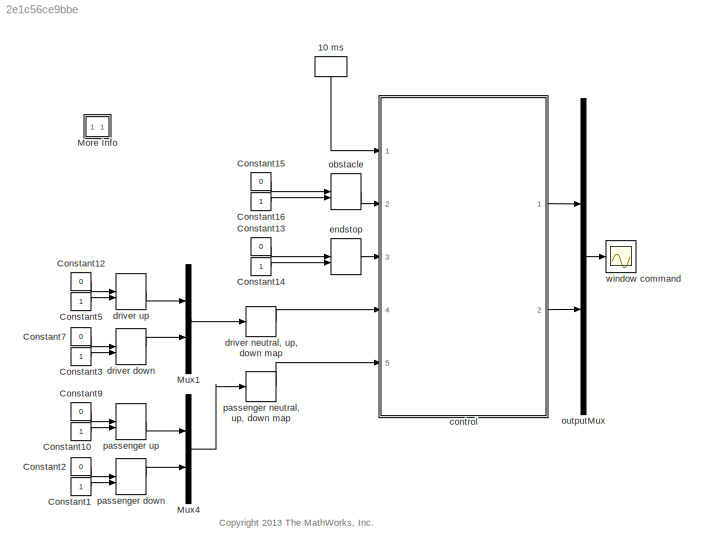
MODEL slx_2e1c56ce9bbe
KIND model
BLOCK [DiscretePulseGenerator] 10 ms
  Ports = [0, 1]
  SampleTime = 10e-3
BLOCK [Constant] Constant1
  OutDataTypeStr = boolean
BLOCK [Constant] Constant10
  OutDataTypeStr = boolean
BLOCK [Constant] Constant12
  OutDataTypeStr = boolean
  Value = 0
BLOCK [Constant] Constant13
  OutDataTypeStr = boolean
  Value = 0
BLOCK [Constant] Constant14
  OutDataTypeStr = boolean
BLOCK [Constant] Constant15
  OutDataTypeStr = boolean
  Value = 0
BLOCK [Constant] Constant16
  OutDataTypeStr = boolean
BLOCK [Constant] Constant2
  OutDataTypeStr = boolean
  Value = 0
BLOCK [Constant] Constant3
  OutDataTypeStr = boolean
BLOCK [Constant] Constant5
  OutDataTypeStr = boolean
BLOCK [Constant] Constant7
  OutDataTypeStr = boolean
  Value = 0
BLOCK [Constant] Constant9
  OutDataTypeStr = boolean
  Value = 0
BLOCK [SubSystem] More Info
  OpenFcn = showdemo('slexPowerWindowScript')
  Ports = []
  RequestExecContextInheritance = off
BLOCK [Mux] Mux1
  DisplayOption = bar
  Inputs = 2
  Ports = [2, 1]
BLOCK [Mux] Mux4
  DisplayOption = bar
  Inputs = 2
  Ports = [2, 1]
BLOCK [ModelReference] control 
  CopyOfModelName = slexPowerWindowControl.slx
  DefaultDataLogging = on
  ModelNameDialog = slexPowerWindowControl.slx
  ModelReferenceVersion = 1.83
  Ports = [5, 2]
BLOCK [ManualSwitch] driver down
BLOCK [CombinatorialLogic] driver neutral, up, down map
  TruthTable = [1 0 0;0 0 1;0 1 0;1 0 0]
BLOCK [ManualSwitch] driver up
BLOCK [ManualSwitch] endstop
BLOCK [ManualSwitch] obstacle
BLOCK [Mux] outputMux
  DisplayOption = bar
  Inputs = 2
  Ports = [2, 1]
BLOCK [ManualSwitch] passenger down
BLOCK [CombinatorialLogic] passenger neutral, up, down map
  TruthTable = [1 0 0;0 0 1;0 1 0;1 0 0]
BLOCK [ManualSwitch] passenger up
BLOCK [Scope] window command
  DataFormat = StructureWithTime
  Floating = off
  NumInputPorts = 1
  Ports = [1]
  ShowLegends = off
  YMax = 1
  YMin = 0
ANNOTATION (root): <copyright redacted>
LINE 10 ms:1 -> control :1
LINE Constant10:1 -> passenger up:2
LINE Constant12:1 -> driver up:1
LINE Constant13:1 -> endstop:1
LINE Constant14:1 -> endstop:2
LINE Constant15:1 -> obstacle:1
LINE Constant16:1 -> obstacle:2
LINE Constant1:1 -> passenger down:2
LINE Constant2:1 -> passenger down:1
LINE Constant3:1 -> driver down:2
LINE Constant5:1 -> driver up:2
LINE Constant7:1 -> driver down:1
LINE Constant9:1 -> passenger up:1
LINE Mux1:1 -> driver neutral, up, down map:1
LINE Mux4:1 -> passenger neutral, up, down map:1
LINE control :1 -> outputMux:1
LINE control :2 -> outputMux:2
LINE driver down:1 -> Mux1:2
LINE driver neutral, up, down map:1 -> control :4
LINE driver up:1 -> Mux1:1
LINE endstop:1 -> control :3
LINE obstacle:1 -> control :2
LINE outputMux:1 -> window command:1
LINE passenger down:1 -> Mux4:2
LINE passenger neutral, up, down map:1 -> control :5
LINE passenger up:1 -> Mux4:1
